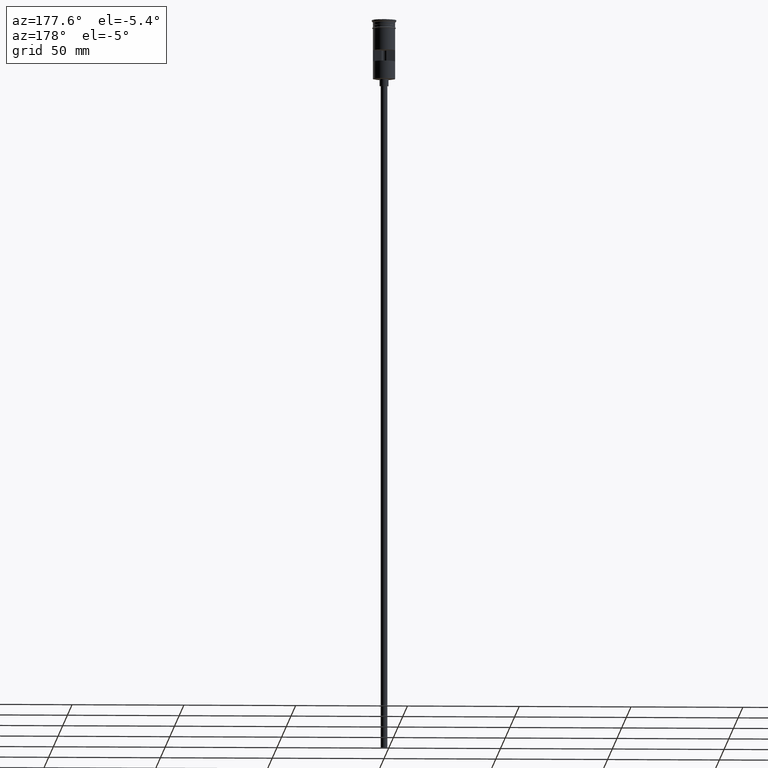
[diagram: clean part render]
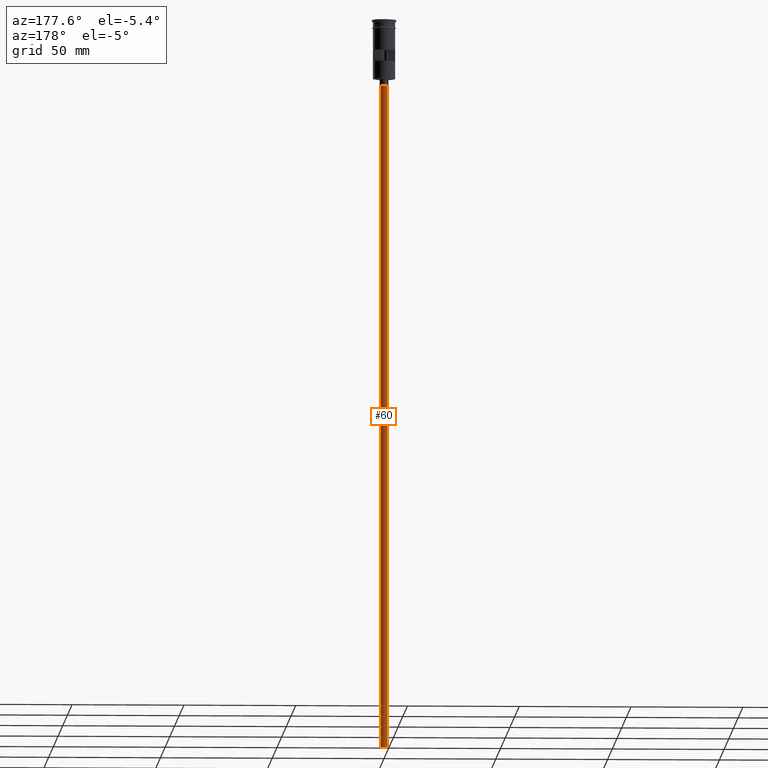
[diagram: same view with one face highlighted and labeled with its STEP entity id]
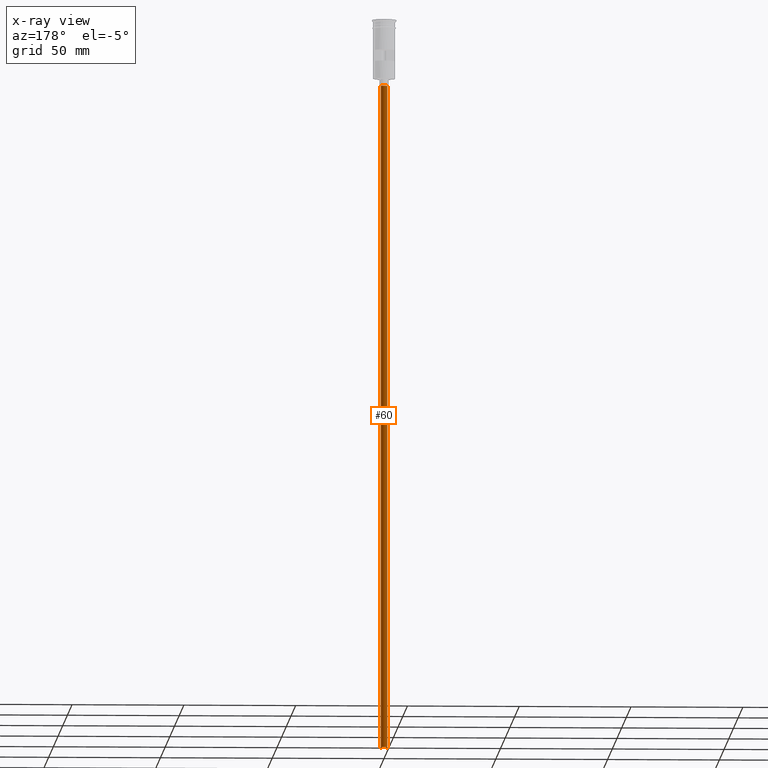
[diagram: x-ray of the same camera — body ghosted, the highlighted face saturated]
A machine part, auxiliary view. The second image highlights one B-rep face of the part: STEP entity #60.
The next image is the same camera in x-ray: the body ghosted, the highlighted face saturated — about 0% of this face is hidden behind the body in this view.
In plain terms, the highlighted cylindrical surface (edge-blend (fillet) strip) has radius 1.5 mm, axis along (-0, -0, 1).
Its self-contained STEP definition (entity closure, byte-faithful):
#16 = AXIS2_PLACEMENT_3D ( 'NONE', #743, #616, #1015 ) ;
#60 = ADVANCED_FACE ( 'NONE', ( #1102 ), #884, .T. ) ;
#76 = DIRECTION ( 'NONE',  ( -0.000000000000000000, -0.000000000000000000, 1.000000000000000000 ) ) ;
#153 = VERTEX_POINT ( 'NONE', #1249 ) ;
#171 = DIRECTION ( 'NONE',  ( -1.000000000000000000, 0.000000000000000000, 0.000000000000000000 ) ) ;
#294 = VERTEX_POINT ( 'NONE', #432 ) ;
#352 = ORIENTED_EDGE ( 'NONE', *, *, #437, .F. ) ;
#403 = CARTESIAN_POINT ( 'NONE',  ( 0.000000000000000000, 0.000000000000000000, -29.50000000000000000 ) ) ;
#422 = VECTOR ( 'NONE', #76, 1000.000000000000000 ) ;
#432 = CARTESIAN_POINT ( 'NONE',  ( 1.500000000000000222, 0.000000000000000000, -29.50000000000000000 ) ) ;
#437 = EDGE_CURVE ( 'NONE', #581, #294, #1589, .T. ) ;
#500 = CIRCLE ( 'NONE', #1384, 1.500000000000000222 ) ;
#530 = DIRECTION ( 'NONE',  ( 0.000000000000000000, 0.000000000000000000, -1.000000000000000000 ) ) ;
#581 = VERTEX_POINT ( 'NONE', #895 ) ;
#586 = VERTEX_POINT ( 'NONE', #1137 ) ;
#616 = DIRECTION ( 'NONE',  ( -0.000000000000000000, -0.000000000000000000, 1.000000000000000000 ) ) ;
#743 = CARTESIAN_POINT ( 'NONE',  ( 0.000000000000000000, 0.000000000000000000, -326.5000000000000000 ) ) ;
#771 = EDGE_CURVE ( 'NONE', #586, #153, #1551, .T. ) ;
#781 = DIRECTION ( 'NONE',  ( -1.000000000000000000, 0.000000000000000000, 0.000000000000000000 ) ) ;
#785 = ORIENTED_EDGE ( 'NONE', *, *, #997, .T. ) ;
#884 = CYLINDRICAL_SURFACE ( 'NONE', #16, 1.500000000000000222 ) ;
#895 = CARTESIAN_POINT ( 'NONE',  ( 1.500000000000000222, 0.000000000000000000, -326.5000000000000000 ) ) ;
#914 = DIRECTION ( 'NONE',  ( 0.000000000000000000, 0.000000000000000000, -1.000000000000000000 ) ) ;
#997 = EDGE_CURVE ( 'NONE', #153, #294, #1545, .T. ) ;
#1015 = DIRECTION ( 'NONE',  ( 1.000000000000000000, 0.000000000000000000, 0.000000000000000000 ) ) ;
#1055 = EDGE_LOOP ( 'NONE', ( #1197, #1149, #785, #352 ) ) ;
#1077 = CARTESIAN_POINT ( 'NONE',  ( 1.500000000000000222, 0.000000000000000000, -326.5000000000000000 ) ) ;
#1102 = FACE_OUTER_BOUND ( 'NONE', #1055, .T. ) ;
#1137 = CARTESIAN_POINT ( 'NONE',  ( -1.500000000000000222, 1.836970198721030181E-16, -326.5000000000000000 ) ) ;
#1149 = ORIENTED_EDGE ( 'NONE', *, *, #771, .T. ) ;
#1170 = CARTESIAN_POINT ( 'NONE',  ( -1.500000000000000222, 1.836970198721030181E-16, -326.5000000000000000 ) ) ;
#1194 = VECTOR ( 'NONE', #1324, 1000.000000000000000 ) ;
#1197 = ORIENTED_EDGE ( 'NONE', *, *, #1582, .F. ) ;
#1249 = CARTESIAN_POINT ( 'NONE',  ( -1.500000000000000222, 1.836970198721030181E-16, -29.50000000000000000 ) ) ;
#1268 = CARTESIAN_POINT ( 'NONE',  ( 0.000000000000000000, 0.000000000000000000, -326.5000000000000000 ) ) ;
#1324 = DIRECTION ( 'NONE',  ( -0.000000000000000000, -0.000000000000000000, 1.000000000000000000 ) ) ;
#1380 = AXIS2_PLACEMENT_3D ( 'NONE', #403, #530, #781 ) ;
#1384 = AXIS2_PLACEMENT_3D ( 'NONE', #1268, #914, #171 ) ;
#1545 = CIRCLE ( 'NONE', #1380, 1.500000000000000222 ) ;
#1551 = LINE ( 'NONE', #1170, #422 ) ;
#1582 = EDGE_CURVE ( 'NONE', #586, #581, #500, .T. ) ;
#1589 = LINE ( 'NONE', #1077, #1194 ) ;